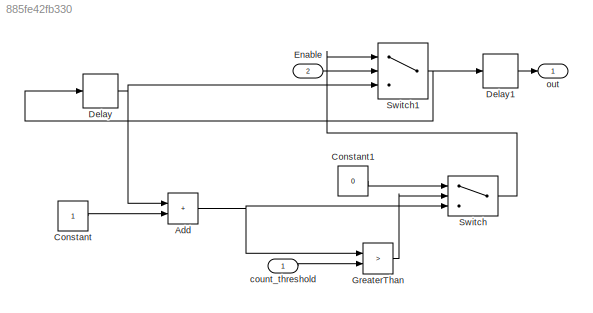
MODEL slx_885fe42fb330
KIND model
CONFIG AbsTol = auto
CONFIG EnableMultiTasking = off
CONFIG FixedStep = auto
CONFIG MaxStep = auto
CONFIG MinStep = auto
CONFIG RelTol = 1e-3
CONFIG SampleTimeConstraint = Unconstrained
CONFIG SolverName = FixedStepAuto
CONFIG StartTime = 0.0
CONFIG StopTime = 10.0
BLOCK [Sum] Add
  AccumDataTypeStr = uint8
  IconShape = rectangular
BLOCK [Constant] Constant
  OutDataTypeStr = uint8
BLOCK [Constant] Constant1
  OutDataTypeStr = uint8
  Value = 0
BLOCK [Delay] Delay
  DelayLength = 1
  InputPortMap = u0
BLOCK [Delay] Delay1
  DelayLength = 1
  InputPortMap = u0
BLOCK [Inport] Enable
  Port = 2
BLOCK [RelationalOperator] GreaterThan
  InputSameDT = off
  Operator = >
  OutDataTypeStr = boolean
  RndMeth = Simplest
BLOCK [Switch] Switch
  Criteria = u2 > Threshold
  InputSameDT = off
  SaturateOnIntegerOverflow = off
BLOCK [Switch] Switch1
  Criteria = u2 > Threshold
  InputSameDT = off
  SaturateOnIntegerOverflow = off
BLOCK [Inport] count_threshold
BLOCK [Outport] out
  VectorParamsAs1DForOutWhenUnconnected = off
NET Add:1 -> GreaterThan:1, Switch:3
LINE Constant1:1 -> Switch:1
LINE Constant:1 -> Add:2
LINE Delay1:1 -> out:1
NET Delay:1 -> Add:1, Switch1:3
LINE Enable:1 -> Switch1:2
LINE GreaterThan:1 -> Switch:2
NET Switch1:1 -> Delay1:1, Delay:1
LINE Switch:1 -> Switch1:1
LINE count_threshold:1 -> GreaterThan:2
note: NET lines group one-source signal fan-out (src -> all destinations, sorted); 1:1 wires keep LINE
